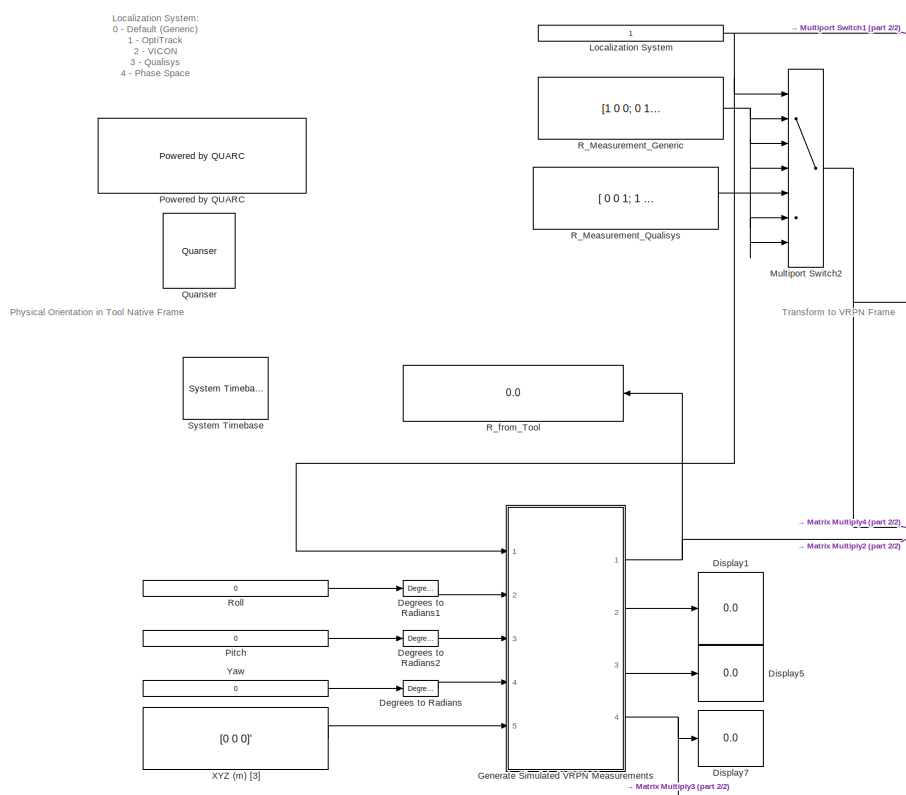
[diagram: root canvas - part 1/2, left side, full height]
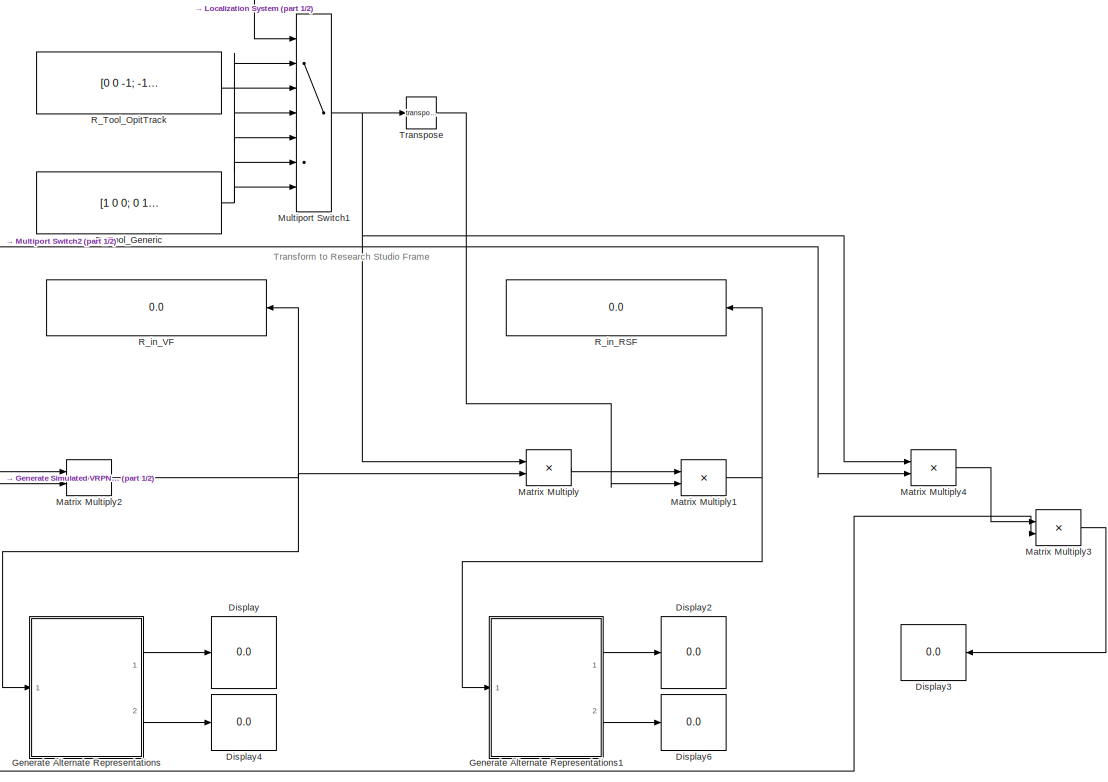
[diagram: root canvas - part 2/2, right side, full height]
MODEL slx_e7d6d3f12251
KIND model
CONFIG AbsTol = auto
CONFIG EnableMultiTasking = on
CONFIG FixedStep = 0.002
CONFIG MaxStep = auto
CONFIG MinStep = auto
CONFIG RelTol = 1e-3
CONFIG SampleTimeConstraint = Unconstrained
CONFIG SolverName = FixedStepDiscrete
CONFIG StartTime = 0.0
CONFIG StopTime = inf
BLOCK [Reference] Degrees to Radians  REF=simulink_extras/Transformations/Degrees to
Radians
  Ports = [1, 1]
  SourceBlock = simulink_extras/Transformations/Degrees to\nRadians
  SourceProductBaseCode = SL
  SourceType = DegreesToRadians
BLOCK [Reference] Degrees to Radians1  REF=simulink_extras/Transformations/Degrees to
Radians
  Ports = [1, 1]
  SourceBlock = simulink_extras/Transformations/Degrees to\nRadians
  SourceProductBaseCode = SL
  SourceType = DegreesToRadians
BLOCK [Reference] Degrees to Radians2  REF=simulink_extras/Transformations/Degrees to
Radians
  Ports = [1, 1]
  SourceBlock = simulink_extras/Transformations/Degrees to\nRadians
  SourceProductBaseCode = SL
  SourceType = DegreesToRadians
BLOCK [Display] Display
  Decimation = 1
  Ports = [1]
BLOCK [Display] Display1
  Decimation = 1
  Ports = [1]
BLOCK [Display] Display2
  Decimation = 1
  Ports = [1]
BLOCK [Display] Display3
  Decimation = 1
  Ports = [1]
BLOCK [Display] Display4
  Decimation = 1
  Ports = [1]
BLOCK [Display] Display5
  Decimation = 1
  Ports = [1]
BLOCK [Display] Display6
  Decimation = 1
  Ports = [1]
BLOCK [Display] Display7
  Decimation = 1
  Ports = [1]
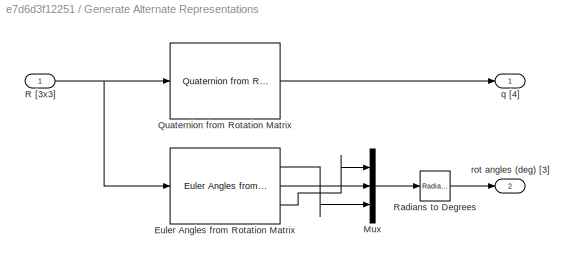
BLOCK [SubSystem] Generate Alternate Representations
  Ports = [1, 2]
  RequestExecContextInheritance = off
BLOCK [Reference] Generate Alternate Representations/Euler Angles from Rotation Matrix  REF=quarc_library/Math Operations/Matrices/Euler Angles from
Rotation Matrix
  Ports = [1, 3]
  SourceBlock = quarc_library/Math Operations/Matrices/Euler Angles from\nRotation Matrix
  SourceProductName = QUARC Targets
  SourceType = Euler Angles from Rotation Matrix
BLOCK [Mux] Generate Alternate Representations/Mux
  DisplayOption = bar
  Inputs = 3
  Ports = [3, 1]
BLOCK [Reference] Generate Alternate Representations/Quaternion from Rotation Matrix  REF=quarc_library/Math Operations/Quaternions/Quaternion
from Rotation Matrix
  Ports = [1, 1]
  SourceBlock = quarc_library/Math Operations/Quaternions/Quaternion\nfrom Rotation Matrix
  SourceProductName = QUARC Targets
  SourceType = Quaternion from Rotation Matrix
BLOCK [Inport] Generate Alternate Representations/R [3x3]
  NameLocation = left
BLOCK [Reference] Generate Alternate Representations/Radians to Degrees  REF=simulink_extras/Transformations/Radians
to Degrees
  Ports = [1, 1]
  SourceBlock = simulink_extras/Transformations/Radians\nto Degrees
  SourceProductBaseCode = SL
  SourceType = RadiansToDegrees
BLOCK [Outport] Generate Alternate Representations/q [4]
  NameLocation = right
BLOCK [Outport] Generate Alternate Representations/rot angles (deg) [3]
  NameLocation = right
  Port = 2
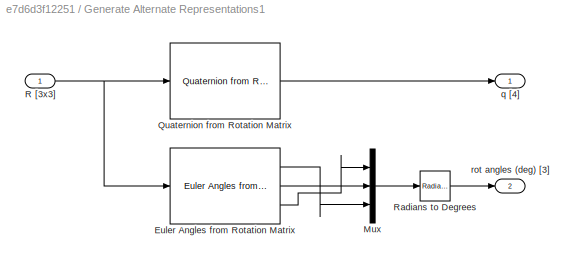
BLOCK [SubSystem] Generate Alternate Representations1
  Ports = [1, 2]
  RequestExecContextInheritance = off
BLOCK [Reference] Generate Alternate Representations1/Euler Angles from Rotation Matrix  REF=quarc_library/Math Operations/Matrices/Euler Angles from
Rotation Matrix
  Ports = [1, 3]
  SourceBlock = quarc_library/Math Operations/Matrices/Euler Angles from\nRotation Matrix
  SourceProductName = QUARC Targets
  SourceType = Euler Angles from Rotation Matrix
BLOCK [Mux] Generate Alternate Representations1/Mux
  DisplayOption = bar
  Inputs = 3
  Ports = [3, 1]
BLOCK [Reference] Generate Alternate Representations1/Quaternion from Rotation Matrix  REF=quarc_library/Math Operations/Quaternions/Quaternion
from Rotation Matrix
  Ports = [1, 1]
  SourceBlock = quarc_library/Math Operations/Quaternions/Quaternion\nfrom Rotation Matrix
  SourceProductName = QUARC Targets
  SourceType = Quaternion from Rotation Matrix
BLOCK [Inport] Generate Alternate Representations1/R [3x3]
  NameLocation = left
BLOCK [Reference] Generate Alternate Representations1/Radians to Degrees  REF=simulink_extras/Transformations/Radians
to Degrees
  Ports = [1, 1]
  SourceBlock = simulink_extras/Transformations/Radians\nto Degrees
  SourceProductBaseCode = SL
  SourceType = RadiansToDegrees
BLOCK [Outport] Generate Alternate Representations1/q [4]
  NameLocation = right
BLOCK [Outport] Generate Alternate Representations1/rot angles (deg) [3]
  NameLocation = right
  Port = 2
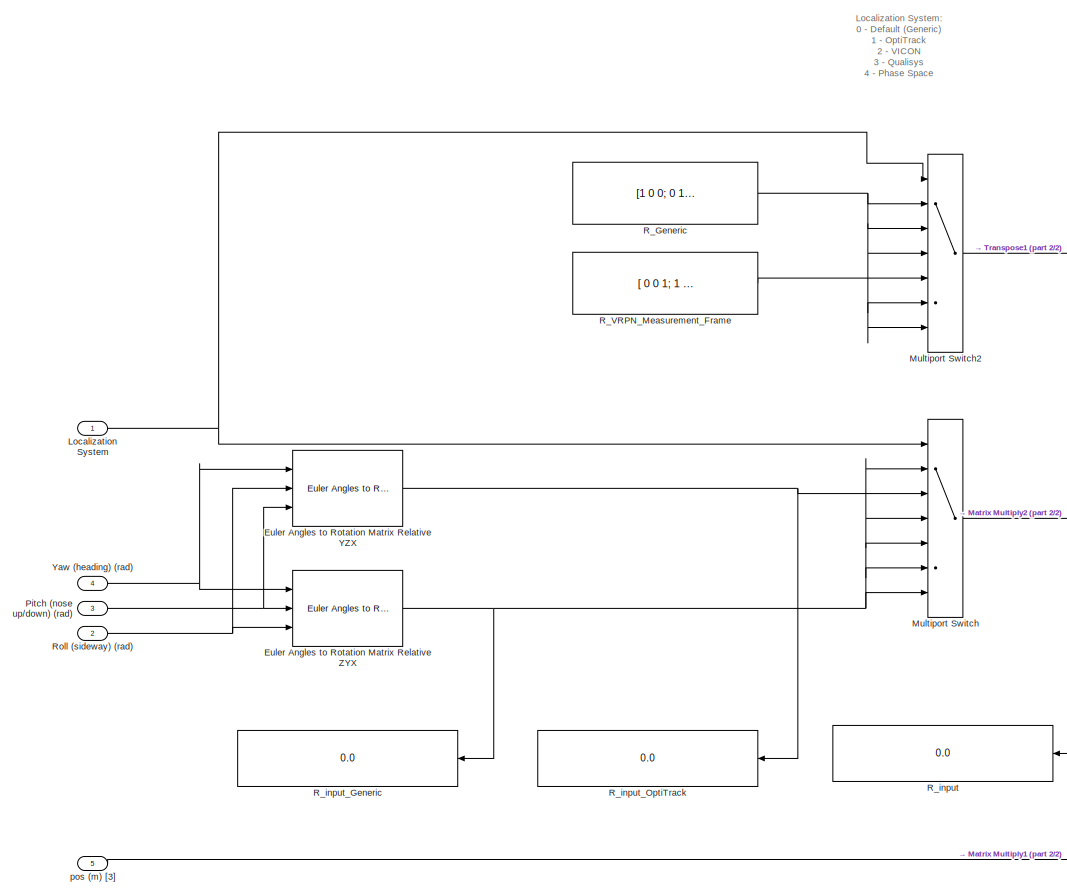
[diagram: Generate Simulated VRPN Measurements - part 1/2, left side, full height]
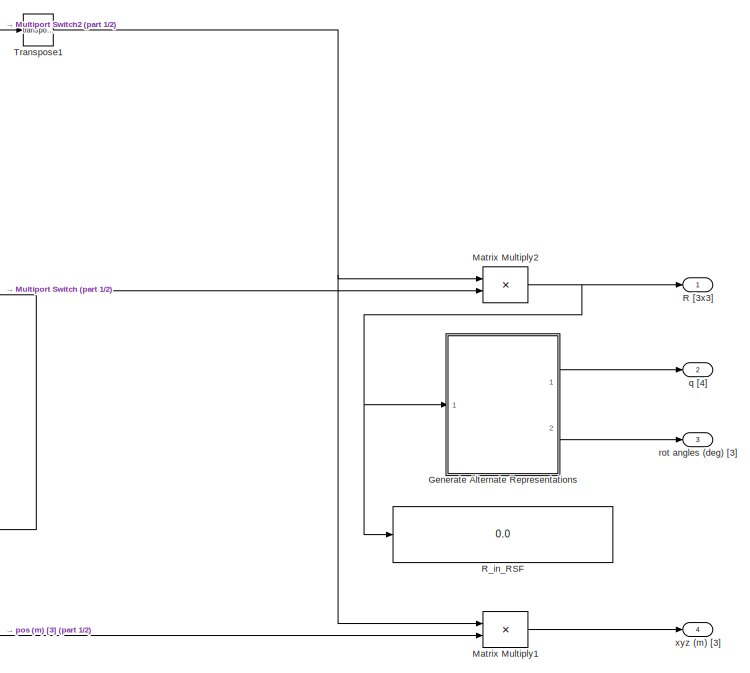
[diagram: Generate Simulated VRPN Measurements - part 2/2, middle right region]
BLOCK [SubSystem] Generate Simulated VRPN Measurements
  Ports = [5, 4]
  RequestExecContextInheritance = off
BLOCK [Reference] Generate Simulated VRPN Measurements/Euler Angles to Rotation Matrix Relative YZX  REF=quarc_library/Math Operations/Matrices/Euler Angles to
Rotation Matrix
  Ports = [3, 1]
  SourceBlock = quarc_library/Math Operations/Matrices/Euler Angles to\nRotation Matrix
  SourceProductName = QUARC Targets
  SourceType = Euler Angles to Rotation Matrix
BLOCK [Reference] Generate Simulated VRPN Measurements/Euler Angles to Rotation Matrix Relative ZYX  REF=quarc_library/Math Operations/Matrices/Euler Angles to
Rotation Matrix
  Ports = [3, 1]
  SourceBlock = quarc_library/Math Operations/Matrices/Euler Angles to\nRotation Matrix
  SourceProductName = QUARC Targets
  SourceType = Euler Angles to Rotation Matrix
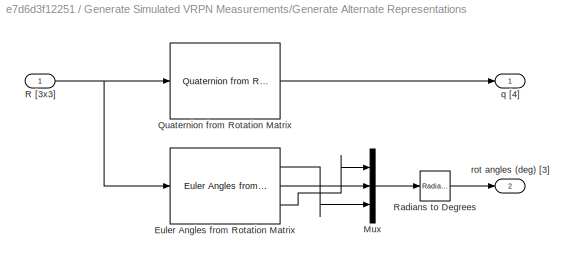
BLOCK [SubSystem] Generate Simulated VRPN Measurements/Generate Alternate Representations
  Ports = [1, 2]
  RequestExecContextInheritance = off
BLOCK [Reference] Generate Simulated VRPN Measurements/Generate Alternate Representations/Euler Angles from Rotation Matrix  REF=quarc_library/Math Operations/Matrices/Euler Angles from
Rotation Matrix
  Ports = [1, 3]
  SourceBlock = quarc_library/Math Operations/Matrices/Euler Angles from\nRotation Matrix
  SourceProductName = QUARC Targets
  SourceType = Euler Angles from Rotation Matrix
BLOCK [Mux] Generate Simulated VRPN Measurements/Generate Alternate Representations/Mux
  DisplayOption = bar
  Inputs = 3
  Ports = [3, 1]
BLOCK [Reference] Generate Simulated VRPN Measurements/Generate Alternate Representations/Quaternion from Rotation Matrix  REF=quarc_library/Math Operations/Quaternions/Quaternion
from Rotation Matrix
  Ports = [1, 1]
  SourceBlock = quarc_library/Math Operations/Quaternions/Quaternion\nfrom Rotation Matrix
  SourceProductName = QUARC Targets
  SourceType = Quaternion from Rotation Matrix
BLOCK [Inport] Generate Simulated VRPN Measurements/Generate Alternate Representations/R [3x3]
  NameLocation = left
BLOCK [Reference] Generate Simulated VRPN Measurements/Generate Alternate Representations/Radians to Degrees  REF=simulink_extras/Transformations/Radians
to Degrees
  Ports = [1, 1]
  SourceBlock = simulink_extras/Transformations/Radians\nto Degrees
  SourceProductBaseCode = SL
  SourceType = RadiansToDegrees
BLOCK [Outport] Generate Simulated VRPN Measurements/Generate Alternate Representations/q [4]
  NameLocation = right
BLOCK [Outport] Generate Simulated VRPN Measurements/Generate Alternate Representations/rot angles (deg) [3]
  NameLocation = right
  Port = 2
BLOCK [Inport] Generate Simulated VRPN Measurements/Localization System
  NameLocation = left
BLOCK [Product] Generate Simulated VRPN Measurements/Matrix Multiply1
  Multiplication = Matrix(*)
  Ports = [2, 1]
BLOCK [Product] Generate Simulated VRPN Measurements/Matrix Multiply2
  Multiplication = Matrix(*)
  Ports = [2, 1]
BLOCK [MultiPortSwitch] Generate Simulated VRPN Measurements/Multiport Switch
  DataPortForDefault = Additional data port
  DataPortOrder = Zero-based contiguous
  DiagnosticForDefault = Warning
  InputSameDT = off
  Inputs = 5
  Ports = [7, 1]
  SaturateOnIntegerOverflow = off
  zeroidx = on
BLOCK [MultiPortSwitch] Generate Simulated VRPN Measurements/Multiport Switch2
  DataPortForDefault = Additional data port
  DataPortOrder = Zero-based contiguous
  DiagnosticForDefault = Warning
  InputSameDT = off
  Inputs = 5
  Ports = [7, 1]
  SaturateOnIntegerOverflow = off
  zeroidx = on
BLOCK [Inport] Generate Simulated VRPN Measurements/Pitch (nose up//down) (rad)
  NameLocation = left
  Port = 3
BLOCK [Outport] Generate Simulated VRPN Measurements/R [3x3]
  NameLocation = right
BLOCK [Constant] Generate Simulated VRPN Measurements/R_Generic
  NameLocation = left
  Value = [1 0 0; 0 1 0; 0 0 1]
  VectorParams1D = off
BLOCK [Constant] Generate Simulated VRPN Measurements/R_VRPN_Measurement_Frame
  NameLocation = left
  Value = [ 0 0 1; 1 0 0; 0 1 0]
  VectorParams1D = off
BLOCK [Display] Generate Simulated VRPN Measurements/R_in_RSF
  Decimation = 1
  Ports = [1]
BLOCK [Display] Generate Simulated VRPN Measurements/R_input
  Decimation = 1
  Ports = [1]
BLOCK [Display] Generate Simulated VRPN Measurements/R_input_Generic
  Decimation = 1
  Ports = [1]
BLOCK [Display] Generate Simulated VRPN Measurements/R_input_OptiTrack
  Decimation = 1
  Ports = [1]
BLOCK [Inport] Generate Simulated VRPN Measurements/Roll (sideway) (rad)
  NameLocation = left
  Port = 2
BLOCK [Math] Generate Simulated VRPN Measurements/Transpose1
  Operator = transpose
  Ports = [1, 1]
BLOCK [Inport] Generate Simulated VRPN Measurements/Yaw (heading) (rad)
  NameLocation = left
  Port = 4
BLOCK [Inport] Generate Simulated VRPN Measurements/pos (m) [3]
  NameLocation = left
  Port = 5
BLOCK [Outport] Generate Simulated VRPN Measurements/q [4]
  NameLocation = right
  Port = 2
BLOCK [Outport] Generate Simulated VRPN Measurements/rot angles (deg) [3]
  NameLocation = right
  Port = 3
BLOCK [Outport] Generate Simulated VRPN Measurements/xyz (m) [3]
  NameLocation = right
  Port = 4
BLOCK [Constant] Localization System
  NameLocation = left
BLOCK [Product] Matrix Multiply
  Multiplication = Matrix(*)
  Ports = [2, 1]
BLOCK [Product] Matrix Multiply1
  Multiplication = Matrix(*)
  Ports = [2, 1]
BLOCK [Product] Matrix Multiply2
  Multiplication = Matrix(*)
  Ports = [2, 1]
BLOCK [Product] Matrix Multiply3
  Multiplication = Matrix(*)
  Ports = [2, 1]
BLOCK [Product] Matrix Multiply4
  Multiplication = Matrix(*)
  Ports = [2, 1]
BLOCK [MultiPortSwitch] Multiport Switch1
  DataPortForDefault = Additional data port
  DataPortOrder = Zero-based contiguous
  DiagnosticForDefault = Warning
  InputSameDT = off
  Inputs = 5
  Ports = [7, 1]
  SaturateOnIntegerOverflow = off
  zeroidx = on
BLOCK [MultiPortSwitch] Multiport Switch2
  DataPortForDefault = Additional data port
  DataPortOrder = Zero-based contiguous
  DiagnosticForDefault = Warning
  InputSameDT = off
  Inputs = 5
  Ports = [7, 1]
  SaturateOnIntegerOverflow = off
  zeroidx = on
BLOCK [Constant] Pitch
  NameLocation = left
  Value = 0
BLOCK [Reference] Powered by QUARC  REF=quarc_library/Logos/Powered by QUARC
  Ports = []
  SourceBlock = quarc_library/Logos/Powered by QUARC
  SourceProductName = QUARC Targets
  SourceType = Powered by QUARC
BLOCK [Reference] Quanser  REF=quarc_library/Logos/Quanser
  Ports = []
  SourceBlock = quarc_library/Logos/Quanser
  SourceProductName = QUARC Targets
  SourceType = Powered by Quanser
BLOCK [Constant] R_Measurement_Generic
  NameLocation = top
  Value = [1 0 0; 0 1 0; 0 0 1]
  VectorParams1D = off
BLOCK [Constant] R_Measurement_Qualisys
  NameLocation = top
  Value = [ 0 0 1; 1 0 0; 0 1 0]
  VectorParams1D = off
BLOCK [Constant] R_Tool_Generic
  NameLocation = left
  Value = [1 0 0; 0 1 0; 0 0 1]
  VectorParams1D = off
BLOCK [Constant] R_Tool_OpitTrack
  NameLocation = left
  Value = [0 0 -1; -1 0 0; 0 1 0]
  VectorParams1D = off
BLOCK [Display] R_from_Tool
  Decimation = 1
  NameLocation = left
  Ports = [1]
BLOCK [Display] R_in_RSF
  Decimation = 1
  Ports = [1]
BLOCK [Display] R_in_VF
  Decimation = 1
  Ports = [1]
BLOCK [Constant] Roll
  NameLocation = left
  Value = 0
BLOCK [Reference] System Timebase  REF=quarc_library/Advanced/Timing/System Timebase
  Ports = []
  SourceBlock = quarc_library/Advanced/Timing/System Timebase
  SourceProductName = QUARC Targets
  SourceType = System Timebase
BLOCK [Math] Transpose
  Operator = transpose
  Ports = [1, 1]
BLOCK [Constant] XYZ (m) [3]
  Value = [0 0 0]'
  VectorParams1D = off
BLOCK [Constant] Yaw
  NameLocation = left
  Value = 0
ANNOTATION (root): Localization System: 0 - Default (Generic) 1 - OptiTrack 2 - VICON 3 - Qualisys 4 - Phase Space
ANNOTATION (root): Physical Orientation in Tool Native Frame
ANNOTATION (root): Transform to Research Studio Frame
ANNOTATION (root): Transform to VRPN Frame
ANNOTATION Generate Simulated VRPN Measurements: Localization System: 0 - Default (Generic) 1 - OptiTrack 2 - VICON 3 - Qualisys 4 - Phase Space
LINE Degrees to Radians1:1 -> Generate Simulated VRPN Measurements:2
LINE Degrees to Radians2:1 -> Generate Simulated VRPN Measurements:3
LINE Degrees to Radians:1 -> Generate Simulated VRPN Measurements:4
LINE Generate Alternate Representations/Euler Angles from Rotation Matrix:1 -> Generate Alternate Representations/Mux:3
LINE Generate Alternate Representations/Euler Angles from Rotation Matrix:2 -> Generate Alternate Representations/Mux:2
LINE Generate Alternate Representations/Euler Angles from Rotation Matrix:3 -> Generate Alternate Representations/Mux:1
LINE Generate Alternate Representations/Mux:1 -> Generate Alternate Representations/Radians to Degrees:1
LINE Generate Alternate Representations/Quaternion from Rotation Matrix:1 -> Generate Alternate Representations/q [4]:1
NET Generate Alternate Representations/R [3x3]:1 -> Generate Alternate Representations/Euler Angles from Rotation Matrix:1, Generate Alternate Representations/Quaternion from Rotation Matrix:1
LINE Generate Alternate Representations/Radians to Degrees:1 -> Generate Alternate Representations/rot angles (deg) [3]:1
LINE Generate Alternate Representations1/Euler Angles from Rotation Matrix:1 -> Generate Alternate Representations1/Mux:3
LINE Generate Alternate Representations1/Euler Angles from Rotation Matrix:2 -> Generate Alternate Representations1/Mux:2
LINE Generate Alternate Representations1/Euler Angles from Rotation Matrix:3 -> Generate Alternate Representations1/Mux:1
LINE Generate Alternate Representations1/Mux:1 -> Generate Alternate Representations1/Radians to Degrees:1
LINE Generate Alternate Representations1/Quaternion from Rotation Matrix:1 -> Generate Alternate Representations1/q [4]:1
NET Generate Alternate Representations1/R [3x3]:1 -> Generate Alternate Representations1/Euler Angles from Rotation Matrix:1, Generate Alternate Representations1/Quaternion from Rotation Matrix:1
LINE Generate Alternate Representations1/Radians to Degrees:1 -> Generate Alternate Representations1/rot angles (deg) [3]:1
LINE Generate Alternate Representations1:1 -> Display2:1
LINE Generate Alternate Representations1:2 -> Display6:1
LINE Generate Alternate Representations:1 -> Display:1
LINE Generate Alternate Representations:2 -> Display4:1
NET Generate Simulated VRPN Measurements/Euler Angles to Rotation Matrix Relative YZX:1 -> Generate Simulated VRPN Measurements/Multiport Switch:3, Generate Simulated VRPN Measurements/R_input_OptiTrack:1
NET Generate Simulated VRPN Measurements/Euler Angles to Rotation Matrix Relative ZYX:1 -> Generate Simulated VRPN Measurements/Multiport Switch:2, Generate Simulated VRPN Measurements/Multiport Switch:4, Generate Simulated VRPN Measurements/Multiport Switch:5, Generate Simulated VRPN Measurements/Multiport Switch:6, Generate Simulated VRPN Measurements/Multiport Switch:7, Generate Simulated VRPN Measurements/R_input_Generic:1
LINE Generate Simulated VRPN Measurements/Generate Alternate Representations/Euler Angles from Rotation Matrix:1 -> Generate Simulated VRPN Measurements/Generate Alternate Representations/Mux:3
LINE Generate Simulated VRPN Measurements/Generate Alternate Representations/Euler Angles from Rotation Matrix:2 -> Generate Simulated VRPN Measurements/Generate Alternate Representations/Mux:2
LINE Generate Simulated VRPN Measurements/Generate Alternate Representations/Euler Angles from Rotation Matrix:3 -> Generate Simulated VRPN Measurements/Generate Alternate Representations/Mux:1
LINE Generate Simulated VRPN Measurements/Generate Alternate Representations/Mux:1 -> Generate Simulated VRPN Measurements/Generate Alternate Representations/Radians to Degrees:1
LINE Generate Simulated VRPN Measurements/Generate Alternate Representations/Quaternion from Rotation Matrix:1 -> Generate Simulated VRPN Measurements/Generate Alternate Representations/q [4]:1
NET Generate Simulated VRPN Measurements/Generate Alternate Representations/R [3x3]:1 -> Generate Simulated VRPN Measurements/Generate Alternate Representations/Euler Angles from Rotation Matrix:1, Generate Simulated VRPN Measurements/Generate Alternate Representations/Quaternion from Rotation Matrix:1
LINE Generate Simulated VRPN Measurements/Generate Alternate Representations/Radians to Degrees:1 -> Generate Simulated VRPN Measurements/Generate Alternate Representations/rot angles (deg) [3]:1
LINE Generate Simulated VRPN Measurements/Generate Alternate Representations:1 -> Generate Simulated VRPN Measurements/q [4]:1
LINE Generate Simulated VRPN Measurements/Generate Alternate Representations:2 -> Generate Simulated VRPN Measurements/rot angles (deg) [3]:1
NET Generate Simulated VRPN Measurements/Localization System:1 -> Generate Simulated VRPN Measurements/Multiport Switch2:1, Generate Simulated VRPN Measurements/Multiport Switch:1
LINE Generate Simulated VRPN Measurements/Matrix Multiply1:1 -> Generate Simulated VRPN Measurements/xyz (m) [3]:1
NET Generate Simulated VRPN Measurements/Matrix Multiply2:1 -> Generate Simulated VRPN Measurements/Generate Alternate Representations:1, Generate Simulated VRPN Measurements/R [3x3]:1, Generate Simulated VRPN Measurements/R_in_RSF:1
LINE Generate Simulated VRPN Measurements/Multiport Switch2:1 -> Generate Simulated VRPN Measurements/Transpose1:1
NET Generate Simulated VRPN Measurements/Multiport Switch:1 -> Generate Simulated VRPN Measurements/Matrix Multiply2:2, Generate Simulated VRPN Measurements/R_input:1
NET Generate Simulated VRPN Measurements/Pitch (nose up//down) (rad):1 -> Generate Simulated VRPN Measurements/Euler Angles to Rotation Matrix Relative YZX:3, Generate Simulated VRPN Measurements/Euler Angles to Rotation Matrix Relative ZYX:2
NET Generate Simulated VRPN Measurements/R_Generic:1 -> Generate Simulated VRPN Measurements/Multiport Switch2:2, Generate Simulated VRPN Measurements/Multiport Switch2:3, Generate Simulated VRPN Measurements/Multiport Switch2:4, Generate Simulated VRPN Measurements/Multiport Switch2:6, Generate Simulated VRPN Measurements/Multiport Switch2:7
LINE Generate Simulated VRPN Measurements/R_VRPN_Measurement_Frame:1 -> Generate Simulated VRPN Measurements/Multiport Switch2:5
NET Generate Simulated VRPN Measurements/Roll (sideway) (rad):1 -> Generate Simulated VRPN Measurements/Euler Angles to Rotation Matrix Relative YZX:2, Generate Simulated VRPN Measurements/Euler Angles to Rotation Matrix Relative ZYX:3
NET Generate Simulated VRPN Measurements/Transpose1:1 -> Generate Simulated VRPN Measurements/Matrix Multiply1:1, Generate Simulated VRPN Measurements/Matrix Multiply2:1
NET Generate Simulated VRPN Measurements/Yaw (heading) (rad):1 -> Generate Simulated VRPN Measurements/Euler Angles to Rotation Matrix Relative YZX:1, Generate Simulated VRPN Measurements/Euler Angles to Rotation Matrix Relative ZYX:1
LINE Generate Simulated VRPN Measurements/pos (m) [3]:1 -> Generate Simulated VRPN Measurements/Matrix Multiply1:2
NET Generate Simulated VRPN Measurements:1 -> Matrix Multiply2:2, R_from_Tool:1
LINE Generate Simulated VRPN Measurements:2 -> Display1:1
LINE Generate Simulated VRPN Measurements:3 -> Display5:1
NET Generate Simulated VRPN Measurements:4 -> Display7:1, Matrix Multiply3:2
NET Localization System:1 -> Generate Simulated VRPN Measurements:1, Multiport Switch1:1, Multiport Switch2:1
NET Matrix Multiply1:1 -> Generate Alternate Representations1:1, R_in_RSF:1
NET Matrix Multiply2:1 -> Generate Alternate Representations:1, Matrix Multiply:2, R_in_VF:1
LINE Matrix Multiply3:1 -> Display3:1
LINE Matrix Multiply4:1 -> Matrix Multiply3:1
LINE Matrix Multiply:1 -> Matrix Multiply1:1
NET Multiport Switch1:1 -> Matrix Multiply4:1, Matrix Multiply:1, Transpose:1
NET Multiport Switch2:1 -> Matrix Multiply2:1, Matrix Multiply4:2
LINE Pitch:1 -> Degrees to Radians2:1
NET R_Measurement_Generic:1 -> Multiport Switch2:2, Multiport Switch2:3, Multiport Switch2:4, Multiport Switch2:6, Multiport Switch2:7
LINE R_Measurement_Qualisys:1 -> Multiport Switch2:5
NET R_Tool_Generic:1 -> Multiport Switch1:2, Multiport Switch1:4, Multiport Switch1:5, Multiport Switch1:6, Multiport Switch1:7
LINE R_Tool_OpitTrack:1 -> Multiport Switch1:3
LINE Roll:1 -> Degrees to Radians1:1
LINE Transpose:1 -> Matrix Multiply1:2
LINE XYZ (m) [3]:1 -> Generate Simulated VRPN Measurements:5
LINE Yaw:1 -> Degrees to Radians:1
note: NET lines group one-source signal fan-out (src -> all destinations, sorted); 1:1 wires keep LINE
